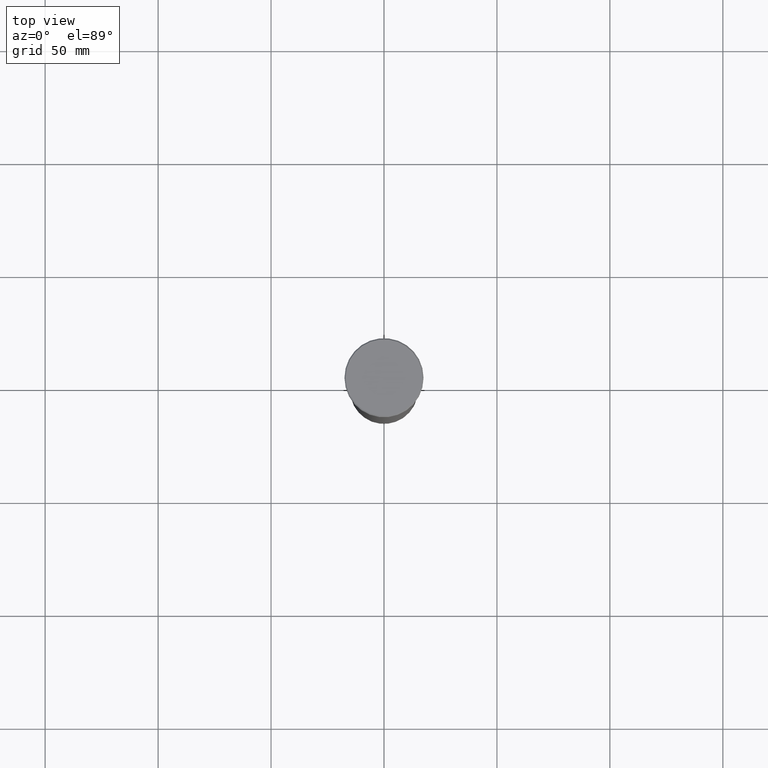
[diagram: clean part render]
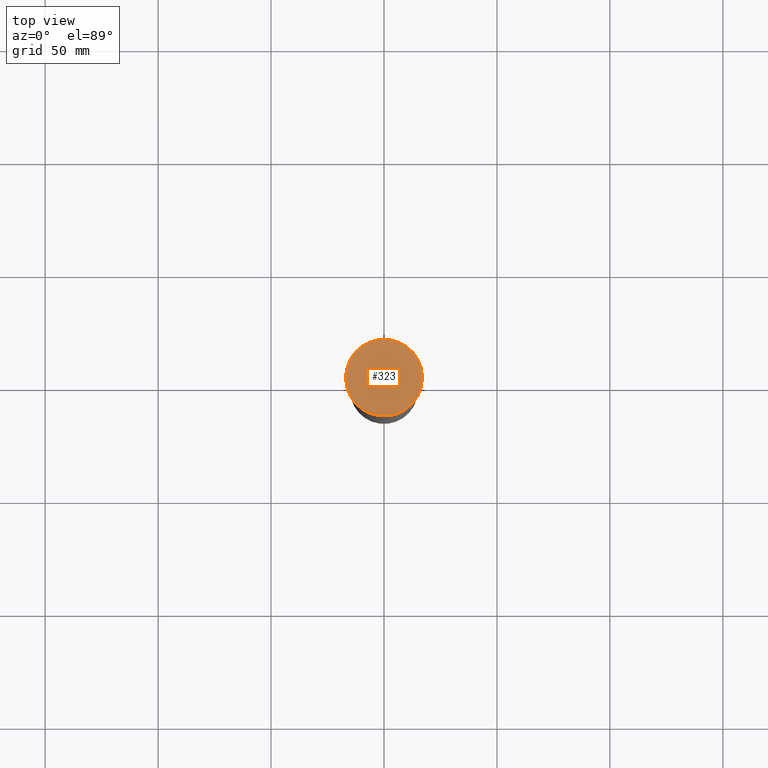
[diagram: same view with one face highlighted and labeled with its STEP entity id]
A machine part, top view. The second image highlights one B-rep face of the part: STEP entity #323.
In plain terms, the highlighted planar face has unit normal (0, -0, 1).
Its self-contained STEP definition (entity closure, byte-faithful):
#6 = AXIS2_PLACEMENT_3D ( 'NONE', #299, #26, #212 ) ;
#8 = EDGE_CURVE ( 'NONE', #490, #484, #77, .T. ) ;
#16 = ORIENTED_EDGE ( 'NONE', *, *, #41, .T. ) ;
#26 = DIRECTION ( 'NONE',  ( -0.000000000000000000, -0.000000000000000000, 1.000000000000000000 ) ) ;
#41 = EDGE_CURVE ( 'NONE', #484, #490, #160, .T. ) ;
#42 = AXIS2_PLACEMENT_3D ( 'NONE', #81, #183, #271 ) ;
#58 = ORIENTED_EDGE ( 'NONE', *, *, #8, .T. ) ;
#76 = DIRECTION ( 'NONE',  ( -0.000000000000000000, -0.000000000000000000, 1.000000000000000000 ) ) ;
#77 = CIRCLE ( 'NONE', #6, 17.00000000000000000 ) ;
#81 = CARTESIAN_POINT ( 'NONE',  ( 0.000000000000000000, 0.000000000000000000, 0.000000000000000000 ) ) ;
#160 = CIRCLE ( 'NONE', #495, 17.00000000000000000 ) ;
#178 = PLANE ( 'NONE',  #42 ) ;
#183 = DIRECTION ( 'NONE',  ( 0.000000000000000000, -0.000000000000000000, 1.000000000000000000 ) ) ;
#212 = DIRECTION ( 'NONE',  ( 1.000000000000000000, 0.000000000000000000, 0.000000000000000000 ) ) ;
#269 = DIRECTION ( 'NONE',  ( 1.000000000000000000, 0.000000000000000000, 0.000000000000000000 ) ) ;
#271 = DIRECTION ( 'NONE',  ( 1.000000000000000000, 0.000000000000000000, 0.000000000000000000 ) ) ;
#299 = CARTESIAN_POINT ( 'NONE',  ( 0.000000000000000000, 0.000000000000000000, 0.000000000000000000 ) ) ;
#306 = FACE_OUTER_BOUND ( 'NONE', #468, .T. ) ;
#323 = ADVANCED_FACE ( 'NONE', ( #306 ), #178, .T. ) ;
#357 = CARTESIAN_POINT ( 'NONE',  ( 0.000000000000000000, 0.000000000000000000, 0.000000000000000000 ) ) ;
#415 = CARTESIAN_POINT ( 'NONE',  ( -17.00000000000000000, 0.000000000000000000, 0.000000000000000000 ) ) ;
#468 = EDGE_LOOP ( 'NONE', ( #58, #16 ) ) ;
#484 = VERTEX_POINT ( 'NONE', #510 ) ;
#490 = VERTEX_POINT ( 'NONE', #415 ) ;
#495 = AXIS2_PLACEMENT_3D ( 'NONE', #357, #76, #269 ) ;
#510 = CARTESIAN_POINT ( 'NONE',  ( 17.00000000000000000, 2.112515728529184067E-15, 0.000000000000000000 ) ) ;